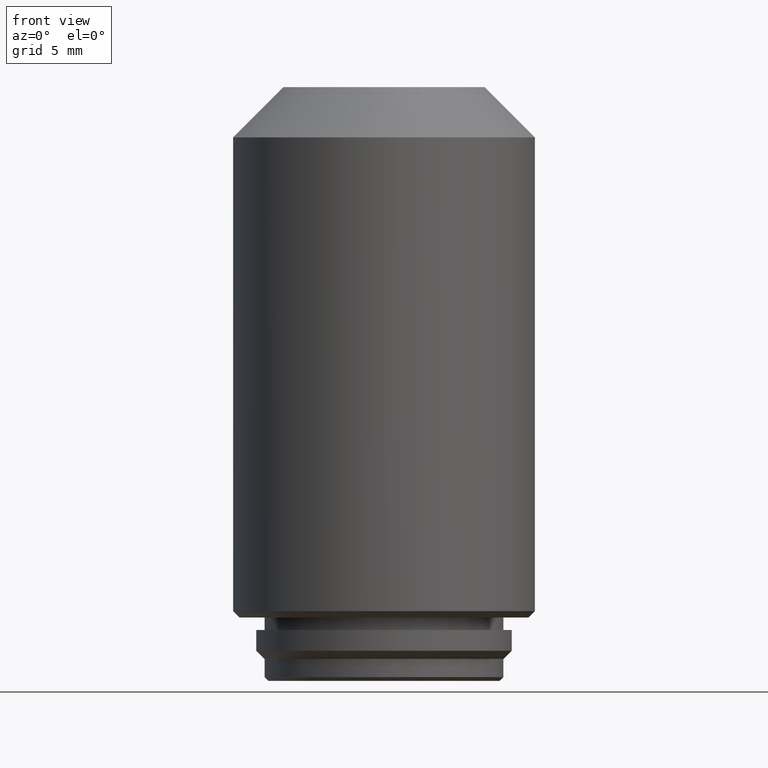
[diagram: clean part render]
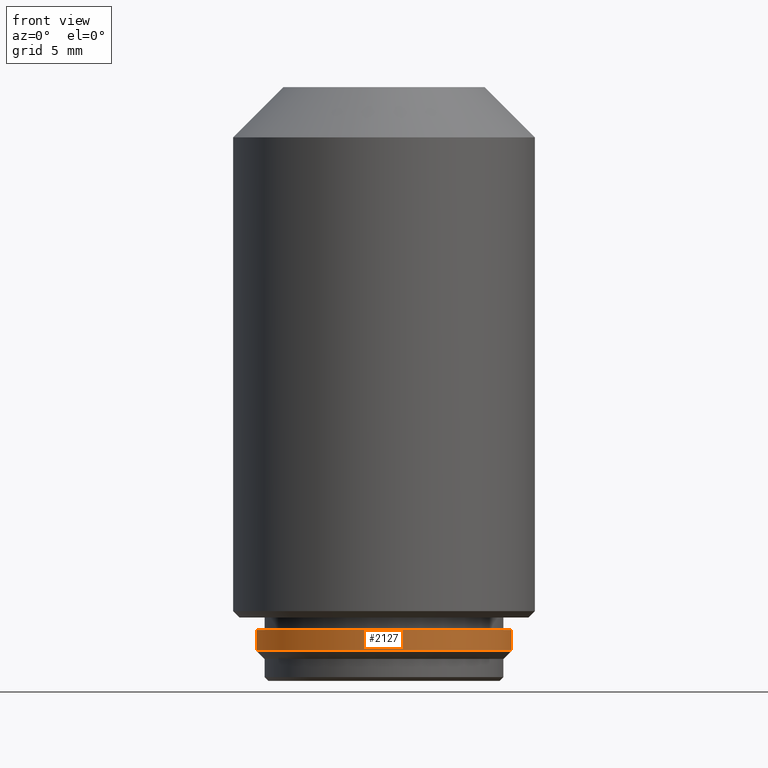
[diagram: same view with one face highlighted and labeled with its STEP entity id]
A machine part, front view. The second image highlights one B-rep face of the part: STEP entity #2127.
In plain terms, the highlighted cylindrical surface (partial cylindrical patch) has radius 10.16 mm, axis along (0, 0, -1).
Its self-contained STEP definition (entity closure, byte-faithful):
#429 = VECTOR ( 'NONE', #3146, 1000.000000000000000 ) ;
#904 = CARTESIAN_POINT ( 'NONE',  ( 0.000000000000000000, 0.000000000000000000, 2.399999999999999911 ) ) ;
#1069 = CARTESIAN_POINT ( 'NONE',  ( -10.16000000000000014, 0.000000000000000000, 5.049999999999999822 ) ) ;
#1161 = CARTESIAN_POINT ( 'NONE',  ( 0.000000000000000000, 0.000000000000000000, 4.049999999999999822 ) ) ;
#2127 = ADVANCED_FACE ( 'NONE', ( #13284 ), #22322, .T. ) ;
#2539 = CARTESIAN_POINT ( 'NONE',  ( 10.16000000000000014, 0.000000000000000000, 2.399999999999999911 ) ) ;
#3146 = DIRECTION ( 'NONE',  ( 0.000000000000000000, 0.000000000000000000, -1.000000000000000000 ) ) ;
#4395 = EDGE_CURVE ( 'NONE', #12454, #8693, #22632, .T. ) ;
#4652 = DIRECTION ( 'NONE',  ( -1.000000000000000000, 0.000000000000000000, 0.000000000000000000 ) ) ;
#4905 = AXIS2_PLACEMENT_3D ( 'NONE', #15136, #16877, #22431 ) ;
#5546 = AXIS2_PLACEMENT_3D ( 'NONE', #904, #20382, #5789 ) ;
#5789 = DIRECTION ( 'NONE',  ( -1.000000000000000000, 0.000000000000000000, 0.000000000000000000 ) ) ;
#6392 = DIRECTION ( 'NONE',  ( 0.000000000000000000, 0.000000000000000000, 1.000000000000000000 ) ) ;
#6927 = CARTESIAN_POINT ( 'NONE',  ( -10.16000000000000014, 1.244241147933710864E-15, 2.399999999999999911 ) ) ;
#8070 = DIRECTION ( 'NONE',  ( 0.000000000000000000, 0.000000000000000000, -1.000000000000000000 ) ) ;
#8693 = VERTEX_POINT ( 'NONE', #6927 ) ;
#8720 = AXIS2_PLACEMENT_3D ( 'NONE', #1161, #6392, #4652 ) ;
#9201 = EDGE_LOOP ( 'NONE', ( #16518, #11666, #17814, #16636 ) ) ;
#9996 = CARTESIAN_POINT ( 'NONE',  ( 10.16000000000000014, 1.244241147933710864E-15, 4.049999999999999822 ) ) ;
#11666 = ORIENTED_EDGE ( 'NONE', *, *, #15417, .F. ) ;
#12454 = VERTEX_POINT ( 'NONE', #14029 ) ;
#13218 = VERTEX_POINT ( 'NONE', #2539 ) ;
#13284 = FACE_OUTER_BOUND ( 'NONE', #9201, .T. ) ;
#14029 = CARTESIAN_POINT ( 'NONE',  ( -10.16000000000000014, 0.000000000000000000, 4.049999999999999822 ) ) ;
#15136 = CARTESIAN_POINT ( 'NONE',  ( 0.000000000000000000, 0.000000000000000000, 5.049999999999999822 ) ) ;
#15417 = EDGE_CURVE ( 'NONE', #12454, #16039, #16517, .T. ) ;
#16039 = VERTEX_POINT ( 'NONE', #9996 ) ;
#16517 = CIRCLE ( 'NONE', #8720, 10.16000000000000014 ) ;
#16518 = ORIENTED_EDGE ( 'NONE', *, *, #19089, .F. ) ;
#16636 = ORIENTED_EDGE ( 'NONE', *, *, #19695, .T. ) ;
#16877 = DIRECTION ( 'NONE',  ( 0.000000000000000000, 0.000000000000000000, -1.000000000000000000 ) ) ;
#17814 = ORIENTED_EDGE ( 'NONE', *, *, #4395, .T. ) ;
#19089 = EDGE_CURVE ( 'NONE', #16039, #13218, #22332, .T. ) ;
#19275 = VECTOR ( 'NONE', #8070, 1000.000000000000000 ) ;
#19695 = EDGE_CURVE ( 'NONE', #8693, #13218, #19971, .T. ) ;
#19971 = CIRCLE ( 'NONE', #5546, 10.16000000000000014 ) ;
#20382 = DIRECTION ( 'NONE',  ( 0.000000000000000000, 0.000000000000000000, 1.000000000000000000 ) ) ;
#20471 = CARTESIAN_POINT ( 'NONE',  ( 10.16000000000000014, 1.244241147933710864E-15, 5.049999999999999822 ) ) ;
#22322 = CYLINDRICAL_SURFACE ( 'NONE', #4905, 10.16000000000000014 ) ;
#22332 = LINE ( 'NONE', #20471, #19275 ) ;
#22431 = DIRECTION ( 'NONE',  ( -1.000000000000000000, 0.000000000000000000, 0.000000000000000000 ) ) ;
#22632 = LINE ( 'NONE', #1069, #429 ) ;